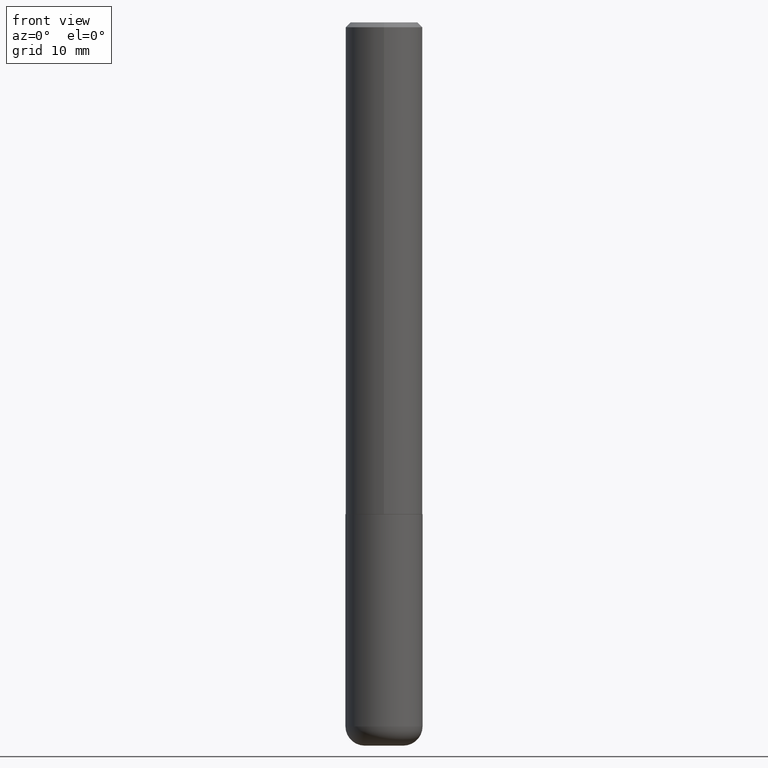
[diagram: clean part render]
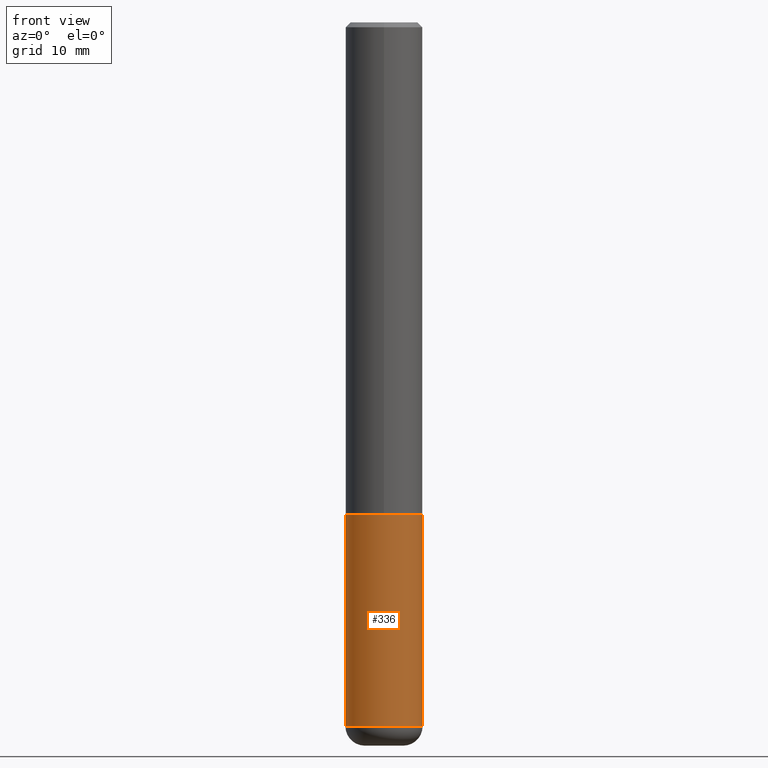
[diagram: same view with one face highlighted and labeled with its STEP entity id]
A machine part, front view. The second image highlights one B-rep face of the part: STEP entity #336.
In plain terms, the highlighted cylindrical surface (partial cylindrical patch) has radius 4.0005 mm, axis along (-0, 0, 1).
Its self-contained STEP definition (entity closure, byte-faithful):
#1 = CARTESIAN_POINT ( 'NONE',  ( -0.1575000000000000011, -7.403601139293960452E-15, -2.007899999999999796 ) ) ;
#4 = VERTEX_POINT ( 'NONE', #314 ) ;
#10 = VECTOR ( 'NONE', #96, 39.37007874015748143 ) ;
#14 = FACE_OUTER_BOUND ( 'NONE', #27, .T. ) ;
#16 = EDGE_CURVE ( 'NONE', #236, #85, #343, .T. ) ;
#27 = EDGE_LOOP ( 'NONE', ( #402, #150, #73, #220 ) ) ;
#29 = CARTESIAN_POINT ( 'NONE',  ( 0.1575000000000000011, -1.099816621735586889E-15, 7.679978421878598033E-30 ) ) ;
#68 = AXIS2_PLACEMENT_3D ( 'NONE', #403, #117, #211 ) ;
#73 = ORIENTED_EDGE ( 'NONE', *, *, #207, .T. ) ;
#75 = AXIS2_PLACEMENT_3D ( 'NONE', #125, #322, #258 ) ;
#80 = DIRECTION ( 'NONE',  ( 1.000000000000000000, -6.982962677686265922E-15, 4.876176775795935232E-29 ) ) ;
#85 = VERTEX_POINT ( 'NONE', #385 ) ;
#87 = LINE ( 'NONE', #29, #398 ) ;
#90 = DIRECTION ( 'NONE',  ( -2.445468806185136877E-29, 3.491481338843145188E-15, 1.000000000000000000 ) ) ;
#96 = DIRECTION ( 'NONE',  ( -2.445468806185136877E-29, 3.491481338843145188E-15, 1.000000000000000000 ) ) ;
#105 = CARTESIAN_POINT ( 'NONE',  ( 0.000000000000000000, 0.000000000000000000, 0.000000000000000000 ) ) ;
#109 = CYLINDRICAL_SURFACE ( 'NONE', #310, 0.1575000000000000011 ) ;
#117 = DIRECTION ( 'NONE',  ( -2.445468806185136597E-29, 3.491481338843145583E-15, 1.000000000000000000 ) ) ;
#125 = CARTESIAN_POINT ( 'NONE',  ( 4.910256815939135309E-29, -7.010545380263150922E-15, -2.007899999999999796 ) ) ;
#150 = ORIENTED_EDGE ( 'NONE', *, *, #16, .T. ) ;
#180 = EDGE_CURVE ( 'NONE', #236, #286, #311, .T. ) ;
#195 = DIRECTION ( 'NONE',  ( -2.445468806185136597E-29, 3.491481338843145583E-15, 1.000000000000000000 ) ) ;
#207 = EDGE_CURVE ( 'NONE', #85, #4, #87, .T. ) ;
#211 = DIRECTION ( 'NONE',  ( 1.000000000000000000, -6.982962677686261977E-15, 0.000000000000000000 ) ) ;
#218 = CARTESIAN_POINT ( 'NONE',  ( -0.1575000000000000011, 1.119104808822157801E-15, -7.747322767151475583E-30 ) ) ;
#220 = ORIENTED_EDGE ( 'NONE', *, *, #325, .F. ) ;
#236 = VERTEX_POINT ( 'NONE', #373 ) ;
#251 = CIRCLE ( 'NONE', #75, 0.1575000000000000011 ) ;
#258 = DIRECTION ( 'NONE',  ( 1.000000000000000000, -6.982962677686268288E-15, 0.000000000000000000 ) ) ;
#286 = VERTEX_POINT ( 'NONE', #1 ) ;
#310 = AXIS2_PLACEMENT_3D ( 'NONE', #105, #195, #80 ) ;
#311 = LINE ( 'NONE', #218, #10 ) ;
#314 = CARTESIAN_POINT ( 'NONE',  ( 0.1575000000000000011, -8.110362001998737613E-15, -2.007899999999999796 ) ) ;
#322 = DIRECTION ( 'NONE',  ( -2.445468806185136597E-29, 3.491481338843145583E-15, 1.000000000000000000 ) ) ;
#325 = EDGE_CURVE ( 'NONE', #286, #4, #251, .T. ) ;
#336 = ADVANCED_FACE ( 'NONE', ( #14 ), #109, .T. ) ;
#343 = CIRCLE ( 'NONE', #68, 0.1575000000000000011 ) ;
#373 = CARTESIAN_POINT ( 'NONE',  ( -0.1574999999999999456, -8.915761707146927585E-15, -2.874099999999999877 ) ) ;
#385 = CARTESIAN_POINT ( 'NONE',  ( 0.1574999999999999456, -1.113468313770467030E-14, -2.874099999999999877 ) ) ;
#398 = VECTOR ( 'NONE', #90, 39.37007874015748143 ) ;
#402 = ORIENTED_EDGE ( 'NONE', *, *, #180, .F. ) ;
#403 = CARTESIAN_POINT ( 'NONE',  ( 7.028521895856700897E-29, -1.003486651596908519E-14, -2.874099999999999877 ) ) ;